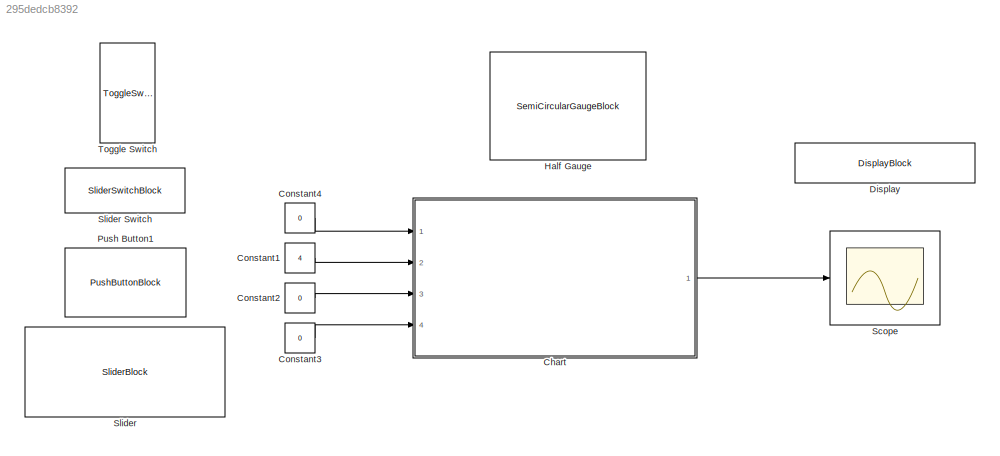
MODEL slx_295dedcb8392
KIND model
CONFIG AbsTol = auto
CONFIG EnableMultiTasking = on
CONFIG FixedStep = auto
CONFIG MaxStep = auto
CONFIG MinStep = auto
CONFIG RelTol = 1e-3
CONFIG SampleTimeConstraint = Unconstrained
CONFIG SolverName = VariableStepAuto
CONFIG StartTime = 0.0
CONFIG StopTime = 10.0
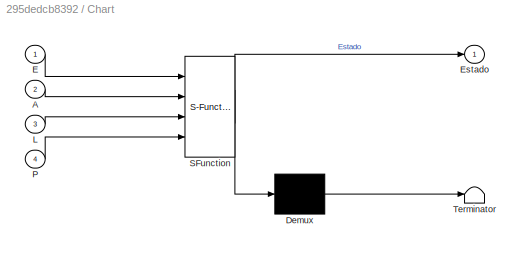
BLOCK [SubSystem] Chart
  ErrorFcn = Stateflow.Translate.translate
  PermitHierarchicalResolution = ExplicitOnly
  Ports = [4, 1]
  RequestExecContextInheritance = off
  SFBlockType = Chart
  TreatAsAtomicUnit = on
BLOCK [Demux] Chart/ Demux 
  Outputs = 1
  Ports = [1, 1]
BLOCK [S-Function] Chart/ SFunction 
  EnableBusSupport = on
  FunctionName = sf_sfun
  PortCounts = [4 2]
  Ports = [4, 2]
  SFcnIsStateOwnerBlock = off
  SFunctionDeploymentMode = off
  Tag = Stateflow S-Function 3
BLOCK [Terminator] Chart/ Terminator 
BLOCK [Inport] Chart/A
  Port = 2
BLOCK [Inport] Chart/E
BLOCK [Outport] Chart/Estado
BLOCK [Inport] Chart/L
  Port = 3
BLOCK [Inport] Chart/P
  Port = 4
BLOCK [Constant] Constant1
  Value = 4
BLOCK [Constant] Constant2
  Value = 0
BLOCK [Constant] Constant3
  Value = 0
BLOCK [Constant] Constant4
  Value = 0
BLOCK [DisplayBlock] Display
  Format = short
  LabelPosition = Hide
  Transparency = 1
BLOCK [SemiCircularGaugeBlock] Half Gauge
BLOCK [PushButtonBlock] Push Button1
BLOCK [Scope] Scope
  Floating = off
  NumInputPorts = 1
  Ports = [1]
  ScopeSpecificationString = Simulink.scopes.TimeScopeBlockCfg('CurrentConfiguration', extmgr.ConfigurationSet(extmgr.Configuration('Core','General UI',true),extmgr.Configuration('Core','Source UI',true),extmgr.Configuration('Sources','WiredSimulink',true),extmgr.Configuration('Visuals','Time Domain',true),extmgr.Configuration('Tools','Plot Navigation',true),extmgr.Configuration('Tools','Measurements',true)),'Version','2021a'...<+1ch>
BLOCK [SliderBlock] Slider
  ScaleMax = 4
  TickInterval = 1
BLOCK [SliderSwitchBlock] Slider Switch
BLOCK [ToggleSwitchBlock] Toggle Switch
LINE Chart:1 -> Scope:1
LINE Constant1:1 -> Chart:2
LINE Constant2:1 -> Chart:3
LINE Constant3:1 -> Chart:4
LINE Constant4:1 -> Chart:1
CHART Chart states=5 transitions=8
  STATE_LABEL 'S2\nentry: Estado = 2;'
  STATE_LABEL 'S1\nentry:\nEstado = 1;\n'
  STATE_LABEL 'S0\nentry:\nEstado = 0;'
  STATE_LABEL 'S4\nentry: Estado = 4;'
  STATE_LABEL 'S3\nentry: Estado = 3;'
CHART  states=0 transitions=0
